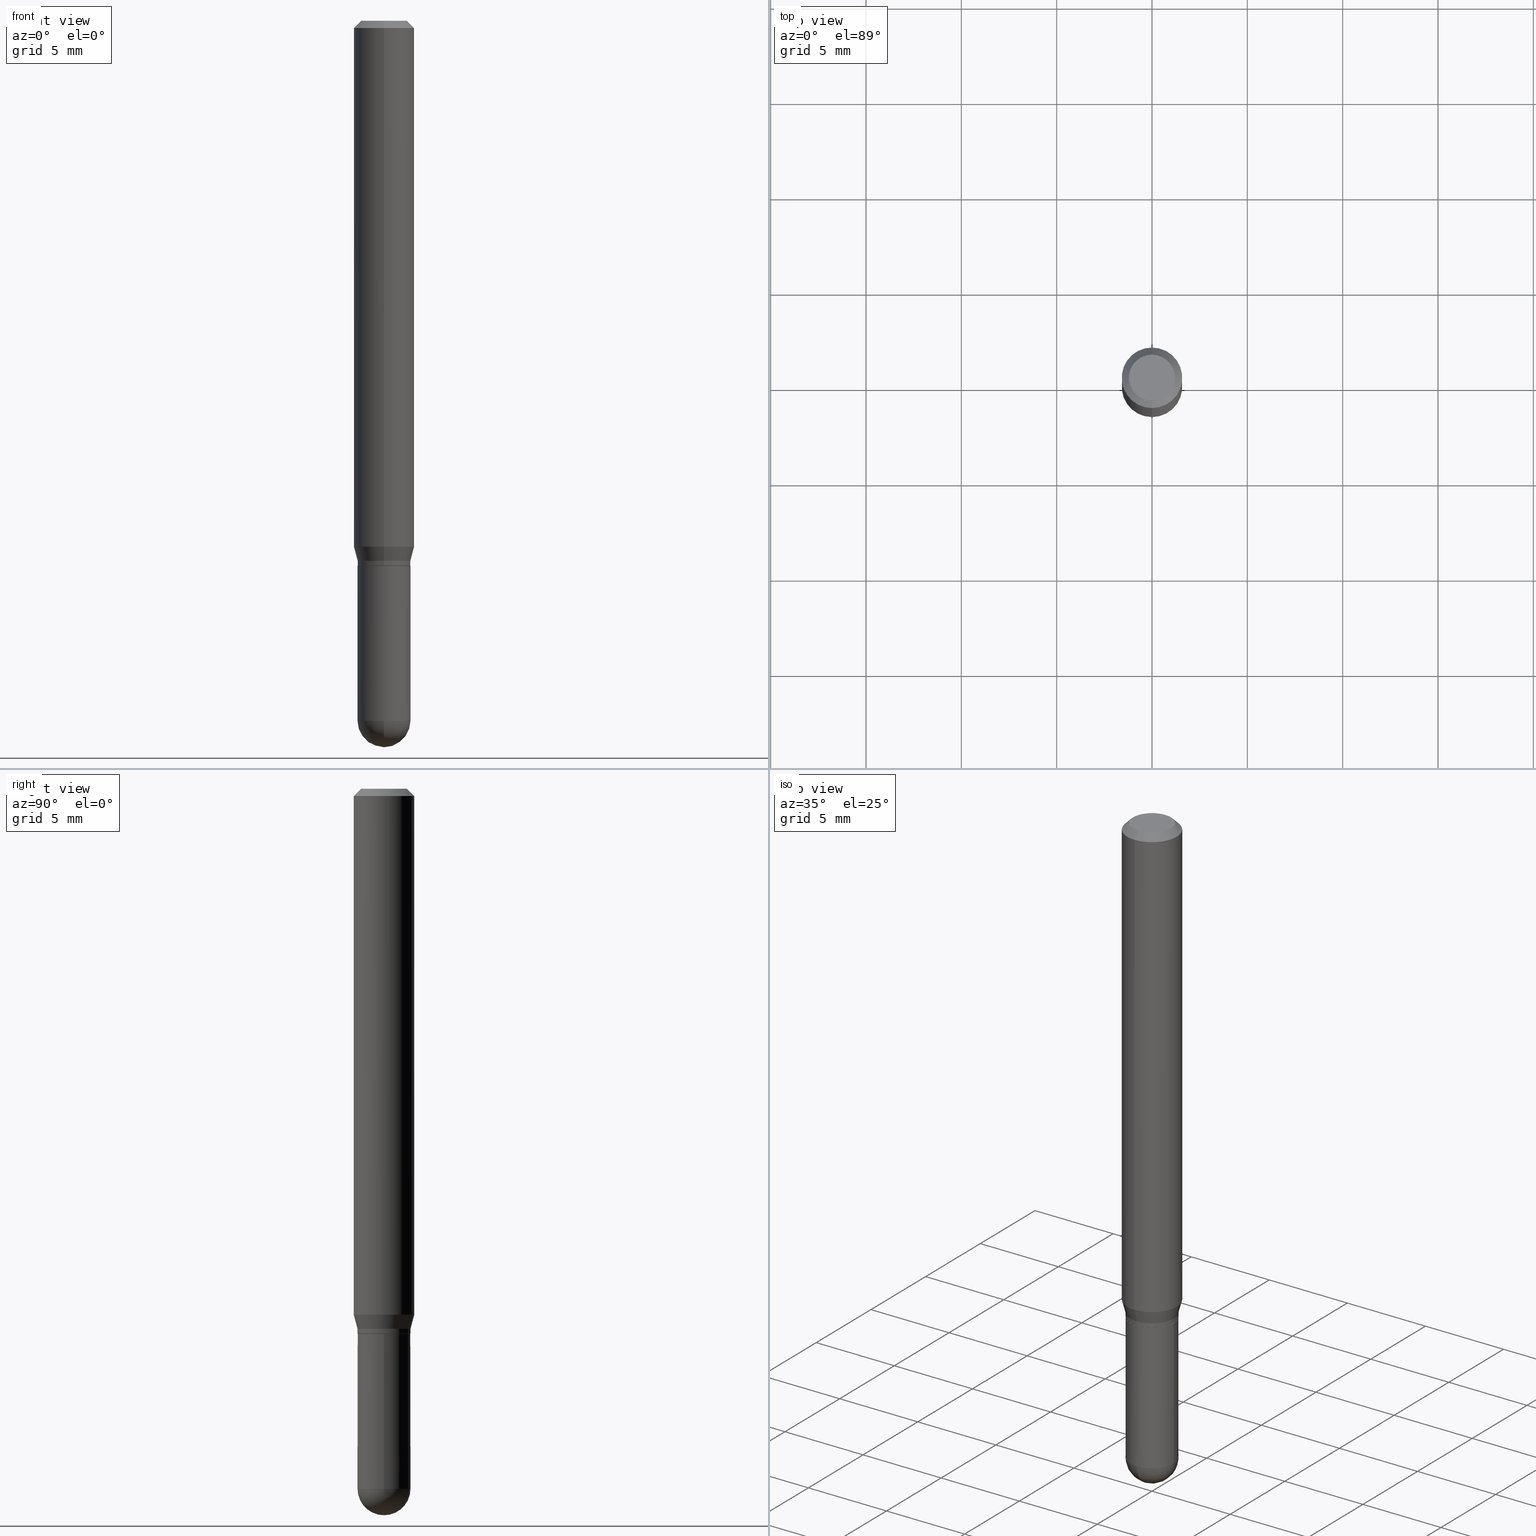
[diagram: canonical four-view strip — front | top / right | iso, engineering-drawing reading convention]
A machine part, canonical four-view strip (front | top / right | iso — engineering-drawing reading convention). The complete STEP part file that produces these views, byte-faithful:
ISO-10303-21;
HEADER;
FILE_DESCRIPTION (( 'STEP AP203' ),
    '1' );
FILE_NAME ('39114.STEP',
    '2024-03-08T12:44:53',
    ( '' ),
    ( '' ),
    'SwSTEP 2.0',
    'SolidWorks 2023',
    '' );
FILE_SCHEMA (( 'CONFIG_CONTROL_DESIGN' ));
ENDSEC;

DATA;
#1 = ORIENTED_EDGE ( 'NONE', *, *, #274, .F. ) ;
#2 = CARTESIAN_POINT ( 'NONE',  ( 0.000000000000000000, 0.000000000000000000, 0.000000000000000000 ) ) ;
#3 = EDGE_CURVE ( 'NONE', #215, #467, #497, .T. ) ;
#4 = PRODUCT_DEFINITION_SHAPE ( 'NONE', 'NONE',  #229 ) ;
#5 = CARTESIAN_POINT ( 'NONE',  ( 3.529758305977566399E-29, -5.052936797021334001E-15, -1.445300000000000029 ) ) ;
#6 = CLOSED_SHELL ( 'NONE', ( #174, #302, #383, #166, #213 ) ) ;
#7 = AXIS2_PLACEMENT_3D ( 'NONE', #219, #334, #107 ) ;
#8 = ORIENTED_EDGE ( 'NONE', *, *, #3, .F. ) ;
#9 = ADVANCED_FACE ( 'NONE', ( #231 ), #354, .T. ) ;
#10 = DIRECTION ( 'NONE',  ( -6.982962677686265922E-15, -1.000000000000000000, 4.994237648380719522E-15 ) ) ;
#11 = EDGE_LOOP ( 'NONE', ( #234, #183 ) ) ;
#12 = DIRECTION ( 'NONE',  ( 1.000000000000000000, -6.982962677686269866E-15, 0.000000000000000000 ) ) ;
#13 = CARTESIAN_POINT ( 'NONE',  ( 3.661186569874987869E-29, -5.247270235251722876E-15, -1.500000000000000222 ) ) ;
#14 = DIRECTION ( 'NONE',  ( -2.445474798914943281E-29, 3.491472756912977253E-15, 1.000000000000000000 ) ) ;
#15 = VECTOR ( 'NONE', #228, 39.37007874015748143 ) ;
#16 = VECTOR ( 'NONE', #410, 39.37007874015748143 ) ;
#17 = LINE ( 'NONE', #277, #15 ) ;
#18 = DIRECTION ( 'NONE',  ( -2.445474798914943281E-29, 3.491472756912977253E-15, 1.000000000000000000 ) ) ;
#19 = DATE_TIME_ROLE ( 'creation_date' ) ;
#20 = DIRECTION ( 'NONE',  ( -6.982962677686266711E-15, -1.000000000000000000, 2.520154975705040126E-15 ) ) ;
#21 = EDGE_CURVE ( 'NONE', #136, #77, #238, .T. ) ;
#22 = PERSON_AND_ORGANIZATION_ROLE ( 'design_supplier' ) ;
#23 = FACE_OUTER_BOUND ( 'NONE', #124, .T. ) ;
#24 = ORIENTED_EDGE ( 'NONE', *, *, #484, .T. ) ;
#25 = EDGE_LOOP ( 'NONE', ( #196, #313, #374, #425 ) ) ;
#26 = ADVANCED_FACE ( 'NONE', ( #32 ), #437, .T. ) ;
#27 = FACE_OUTER_BOUND ( 'NONE', #353, .T. ) ;
#28 = AXIS2_PLACEMENT_3D ( 'NONE', #311, #84, #432 ) ;
#29 = AXIS2_PLACEMENT_3D ( 'NONE', #210, #251, #327 ) ;
#30 = ORIENTED_EDGE ( 'NONE', *, *, #138, .T. ) ;
#31 = PERSON_AND_ORGANIZATION ( #474, #281 ) ;
#32 = FACE_OUTER_BOUND ( 'NONE', #211, .T. ) ;
#33 = ORIENTED_EDGE ( 'NONE', *, *, #128, .T. ) ;
#34 = DIRECTION ( 'NONE',  ( -6.982962677686265922E-15, -1.000000000000000000, 3.491472756912977647E-15 ) ) ;
#35 = ORIENTED_EDGE ( 'NONE', *, *, #148, .F. ) ;
#36 = FACE_OUTER_BOUND ( 'NONE', #25, .T. ) ;
#37 = EDGE_CURVE ( 'NONE', #421, #77, #186, .T. ) ;
#38 = AXIS2_PLACEMENT_3D ( 'NONE', #203, #43, #34 ) ;
#39 = DIRECTION ( 'NONE',  ( -6.982962677686265133E-15, -1.000000000000000000, 3.491472756912976858E-15 ) ) ;
#40 = SECURITY_CLASSIFICATION ( '', '', #315 ) ;
#41 = UNCERTAINTY_MEASURE_WITH_UNIT (LENGTH_MEASURE( 1.000000000000000082E-05 ), #405, 'distance_accuracy_value', 'NONE');
#42 = EDGE_CURVE ( 'NONE', #391, #53, #316, .T. ) ;
#43 = DIRECTION ( 'NONE',  ( -2.445474798914943281E-29, 3.491472756912977253E-15, 1.000000000000000000 ) ) ;
#44 = LINE ( 'NONE', #129, #342 ) ;
#45 = AXIS2_PLACEMENT_3D ( 'NONE', #286, #93, #257 ) ;
#46 = DIRECTION ( 'NONE',  ( 1.000000000000000000, -6.982962677686259611E-15, 0.000000000000000000 ) ) ;
#47 = DIRECTION ( 'NONE',  ( -6.982962677686266711E-15, -1.000000000000000000, 0.000000000000000000 ) ) ;
#48 = EDGE_CURVE ( 'NONE', #125, #465, #108, .T. ) ;
#49 = VECTOR ( 'NONE', #54, 39.37007874015748143 ) ;
#50 = CARTESIAN_POINT ( 'NONE',  ( 8.756930564183345789E-45, -1.250251464974845708E-30, -3.580871317123690674E-16 ) ) ;
#51 = ORIENTED_EDGE ( 'NONE', *, *, #193, .T. ) ;
#52 = CARTESIAN_POINT ( 'NONE',  ( -4.364351673553651440E-16, -0.06250000000000380251, -1.085890003700963558 ) ) ;
#53 = VERTEX_POINT ( 'NONE', #145 ) ;
#54 = DIRECTION ( 'NONE',  ( -4.851104656540959542E-15, -0.7071067811865493491, -0.7071067811865456854 ) ) ;
#55 = CARTESIAN_POINT ( 'NONE',  ( -0.05469999999999999862, 3.886668764607747919E-16, -2.690657494369433708E-30 ) ) ;
#56 = FACE_OUTER_BOUND ( 'NONE', #172, .T. ) ;
#57 = PERSON_AND_ORGANIZATION ( #474, #281 ) ;
#58 = AXIS2_PLACEMENT_3D ( 'NONE', #75, #164, #397 ) ;
#59 = AXIS2_PLACEMENT_3D ( 'NONE', #362, #296, #134 ) ;
#60 = DIRECTION ( 'NONE',  ( 6.982962677686265922E-15, 1.000000000000000000, -3.491472756912977253E-15 ) ) ;
#61 = ADVANCED_FACE ( 'NONE', ( #463 ), #115, .F. ) ;
#62 = ORIENTED_EDGE ( 'NONE', *, *, #3, .T. ) ;
#63 = APPROVAL_PERSON_ORGANIZATION ( #105, #441, #151 ) ;
#64 = CARTESIAN_POINT ( 'NONE',  ( 3.886668764608033881E-16, 0.05469999999999629325, -1.115000000000000213 ) ) ;
#65 = APPROVAL_ROLE ( '' ) ;
#66 = CARTESIAN_POINT ( 'NONE',  ( 3.886668764608023527E-16, 0.05469999999999607815, -1.124500000000000277 ) ) ;
#67 = ADVANCED_FACE ( 'NONE', ( #304 ), #297, .T. ) ;
#68 = EDGE_LOOP ( 'NONE', ( #30, #382, #121, #110 ) ) ;
#69 = EDGE_LOOP ( 'NONE', ( #113, #80, #310, #350 ) ) ;
#70 = DATE_TIME_ROLE ( 'classification_date' ) ;
#71 = DIRECTION ( 'NONE',  ( -2.445474798914943281E-29, 3.491472756912977253E-15, 1.000000000000000000 ) ) ;
#72 = CC_DESIGN_PERSON_AND_ORGANIZATION_ASSIGNMENT ( #348, #303, ( #229 ) ) ;
#73 = ORIENTED_EDGE ( 'NONE', *, *, #482, .F. ) ;
#74 = CALENDAR_DATE ( 2024, 8, 3 ) ;
#75 = CARTESIAN_POINT ( 'NONE',  ( 3.529758305977566399E-29, -5.052936797021334001E-15, -1.445300000000000029 ) ) ;
#76 = AXIS2_PLACEMENT_3D ( 'NONE', #399, #332, #10 ) ;
#77 = VERTEX_POINT ( 'NONE', #66 ) ;
#78 = VERTEX_POINT ( 'NONE', #119 ) ;
#79 = CALENDAR_DATE ( 2024, 8, 3 ) ;
#80 = ORIENTED_EDGE ( 'NONE', *, *, #247, .T. ) ;
#81 = FACE_OUTER_BOUND ( 'NONE', #507, .T. ) ;
#82 = PRODUCT ( '39114', '39114', '', ( #340 ) ) ;
#83 = ORIENTED_EDGE ( 'NONE', *, *, #388, .T. ) ;
#84 = DIRECTION ( 'NONE',  ( -2.445474798914943281E-29, 3.491472756912977253E-15, 1.000000000000000000 ) ) ;
#85 = AXIS2_PLACEMENT_3D ( 'NONE', #417, #188, #181 ) ;
#86 = VECTOR ( 'NONE', #217, 39.37007874015748143 ) ;
#87 = DIRECTION ( 'NONE',  ( -2.445474798914943281E-29, 3.491472756912977253E-15, 1.000000000000000000 ) ) ;
#88 = DIRECTION ( 'NONE',  ( -2.445468806185136877E-29, 3.491481338843145188E-15, 1.000000000000000000 ) ) ;
#89 = LOCAL_TIME ( 7, 44, 53.00000000000000000, #450 ) ;
#90 = CARTESIAN_POINT ( 'NONE',  ( -3.819680584694120632E-16, -0.05470000000000403706, -1.124500000000000055 ) ) ;
#91 = ORIENTED_EDGE ( 'NONE', *, *, #216, .T. ) ;
#92 = APPLICATION_CONTEXT ( 'configuration controlled 3d designs of mechanical parts and assemblies' ) ;
#93 = DIRECTION ( 'NONE',  ( -2.445468806185136597E-29, 3.491481338843145583E-15, 1.000000000000000000 ) ) ;
#94 = LENGTH_MEASURE_WITH_UNIT ( LENGTH_MEASURE( 0.02539999999999999897 ), #329 );
#95 = CC_DESIGN_PERSON_AND_ORGANIZATION_ASSIGNMENT ( #423, #191, ( #82 ) ) ;
#96 = AXIS2_PLACEMENT_3D ( 'NONE', #377, #339, #386 ) ;
#97 = AXIS2_PLACEMENT_3D ( 'NONE', #367, #439, #479 ) ;
#98 = CARTESIAN_POINT ( 'NONE',  ( 3.886668764608108330E-16, 0.05469999999999505119, -1.445300000000000251 ) ) ;
#99 = EDGE_CURVE ( 'NONE', #422, #465, #282, .T. ) ;
#100 = CYLINDRICAL_SURFACE ( 'NONE', #187, 0.06250000000000001388 ) ;
#101 = CARTESIAN_POINT ( 'NONE',  ( 0.05470000000000000556, -4.869045301083706902E-15, -1.445300000000000029 ) ) ;
#102 = ORIENTED_EDGE ( 'NONE', *, *, #148, .T. ) ;
#103 = ADVANCED_FACE ( 'NONE', ( #264 ), #131, .T. ) ;
#104 = LINE ( 'NONE', #409, #49 ) ;
#105 = PERSON_AND_ORGANIZATION ( #474, #281 ) ;
#106 = CARTESIAN_POINT ( 'NONE',  ( 0.05469999999999999862, -3.819680584694387859E-16, 2.667268696360376954E-30 ) ) ;
#107 = DIRECTION ( 'NONE',  ( 1.000000000000000000, -6.982962677686259611E-15, 0.000000000000000000 ) ) ;
#108 = CIRCLE ( 'NONE', #400, 0.06250000000000001388 ) ;
#109 = DIRECTION ( 'NONE',  ( -6.982962677686265133E-15, -1.000000000000000000, 2.497118824190365677E-15 ) ) ;
#110 = ORIENTED_EDGE ( 'NONE', *, *, #128, .F. ) ;
#111 = DIRECTION ( 'NONE',  ( -2.445474798914943281E-29, 3.491472756912977253E-15, 1.000000000000000000 ) ) ;
#112 = ORIENTED_EDGE ( 'NONE', *, *, #248, .F. ) ;
#113 = ORIENTED_EDGE ( 'NONE', *, *, #171, .T. ) ;
#114 = DIRECTION ( 'NONE',  ( 1.000000000000000000, 0.000000000000000000, 0.000000000000000000 ) ) ;
#115 = PLANE ( 'NONE',  #318 ) ;
#116 = APPLICATION_CONTEXT ( 'configuration controlled 3d designs of mechanical parts and assemblies' ) ;
#117 = DIRECTION ( 'NONE',  ( -2.445474798914943281E-29, 3.491472756912977253E-15, 1.000000000000000000 ) ) ;
#118 = DIRECTION ( 'NONE',  ( 0.000000000000000000, 0.000000000000000000, 1.000000000000000000 ) ) ;
#119 = CARTESIAN_POINT ( 'NONE',  ( 4.163780431554463635E-16, 0.05469999999999629325, -1.115000000000000213 ) ) ;
#120 = CIRCLE ( 'NONE', #359, 0.05470000000000018597 ) ;
#121 = ORIENTED_EDGE ( 'NONE', *, *, #37, .F. ) ;
#122 = EDGE_CURVE ( 'NONE', #77, #421, #265, .T. ) ;
#123 = DIRECTION ( 'NONE',  ( -2.445468806185136597E-29, 3.491481338843145583E-15, 1.000000000000000000 ) ) ;
#124 = EDGE_LOOP ( 'NONE', ( #500, #431, #387, #395 ) ) ;
#125 = VERTEX_POINT ( 'NONE', #177 ) ;
#126 = AXIS2_PLACEMENT_3D ( 'NONE', #466, #322, #202 ) ;
#127 = DIRECTION ( 'NONE',  ( 1.000000000000000000, -6.982962677686266711E-15, 4.876176775795935793E-29 ) ) ;
#128 = EDGE_CURVE ( 'NONE', #394, #421, #17, .T. ) ;
#129 = CARTESIAN_POINT ( 'NONE',  ( -3.819680584694395748E-16, -0.05470000000000011658, 1.909835598031402779E-16 ) ) ;
#130 = CARTESIAN_POINT ( 'NONE',  ( 3.668212198372502678E-31, -5.237209135369591431E-17, -0.01500000000000035853 ) ) ;
#131 = CONICAL_SURFACE ( 'NONE', #363, 0.05419999999999999818, 0.7853981633974739252 ) ;
#132 = CIRCLE ( 'NONE', #266, 0.05470000000000000556 ) ;
#133 = ADVANCED_FACE ( 'NONE', ( #23 ), #233, .T. ) ;
#134 = DIRECTION ( 'NONE',  ( -6.982962677686265922E-15, -1.000000000000000000, 4.370956789862821150E-15 ) ) ;
#135 = CC_DESIGN_SECURITY_CLASSIFICATION ( #40, ( #270 ) ) ;
#136 = VERTEX_POINT ( 'NONE', #269 ) ;
#137 = DIRECTION ( 'NONE',  ( 7.105427357601001070E-15, 1.000000000000000000, 0.000000000000000000 ) ) ;
#138 = EDGE_CURVE ( 'NONE', #394, #136, #254, .T. ) ;
#139 = CARTESIAN_POINT ( 'NONE',  ( 2.751152406958279232E-29, -3.927916506198539224E-15, -1.125000000000000222 ) ) ;
#140 = AXIS2_PLACEMENT_3D ( 'NONE', #385, #118, #114 ) ;
#141 = DIRECTION ( 'NONE',  ( -6.982962677686265133E-15, -1.000000000000000000, 3.491472756912976858E-15 ) ) ;
#142 = CC_DESIGN_DATE_AND_TIME_ASSIGNMENT ( #268, #70, ( #40 ) ) ;
#143 = DIRECTION ( 'NONE',  ( -6.982962677686266711E-15, -1.000000000000000000, 2.520154975705040126E-15 ) ) ;
#144 = ORIENTED_EDGE ( 'NONE', *, *, #122, .F. ) ;
#145 = CARTESIAN_POINT ( 'NONE',  ( 0.05469999999999999862, -4.309884564667978405E-15, -1.125000000000000222 ) ) ;
#146 = APPROVAL_DATE_TIME ( #236, #441 ) ;
#147 = AXIS2_PLACEMENT_3D ( 'NONE', #454, #413, #336 ) ;
#148 = EDGE_CURVE ( 'NONE', #317, #278, #372, .T. ) ;
#149 = DIRECTION ( 'NONE',  ( 2.445474798914943001E-29, -3.491472756912977253E-15, -1.000000000000000000 ) ) ;
#150 = CARTESIAN_POINT ( 'NONE',  ( 2.751159148779311401E-29, -3.927906851527099952E-15, -1.125000000000000222 ) ) ;
#151 = APPROVAL_ROLE ( '' ) ;
#152 = DIRECTION ( 'NONE',  ( -2.445474798914943281E-29, 3.491472756912977253E-15, 1.000000000000000000 ) ) ;
#153 = ORIENTED_EDGE ( 'NONE', *, *, #471, .T. ) ;
#154 = ORIENTED_EDGE ( 'NONE', *, *, #471, .F. ) ;
#155 = DATE_AND_TIME ( #74, #199 ) ;
#156 = CARTESIAN_POINT ( 'NONE',  ( 3.668212198372502678E-31, -5.237209135369591431E-17, -0.01500000000000035853 ) ) ;
#157 = ORIENTED_EDGE ( 'NONE', *, *, #48, .T. ) ;
#158 = CYLINDRICAL_SURFACE ( 'NONE', #396, 0.05469999999999999862 ) ;
#159 = CONICAL_SURFACE ( 'NONE', #319, 0.05470000000000018597, 0.2617993877991511287 ) ;
#160 = APPROVAL ( #453, 'UNSPECIFIED' ) ;
#161 = EDGE_LOOP ( 'NONE', ( #504, #102, #343, #427, #239 ) ) ;
#162 = ORIENTED_EDGE ( 'NONE', *, *, #171, .F. ) ;
#163 = EDGE_CURVE ( 'NONE', #77, #78, #496, .T. ) ;
#164 = DIRECTION ( 'NONE',  ( 1.000000000000000000, -6.982962677686265922E-15, 4.883557194083113462E-29 ) ) ;
#165 = DIRECTION ( 'NONE',  ( 1.000000000000000000, -6.982962677686269866E-15, 0.000000000000000000 ) ) ;
#166 = ADVANCED_FACE ( 'NONE', ( #27 ), #424, .T. ) ;
#167 = CONICAL_SURFACE ( 'NONE', #288, 0.05470000000000018597, 0.2617993877991511287 ) ;
#168 = DIRECTION ( 'NONE',  ( -6.982962677686265922E-15, -1.000000000000000000, 3.483106191921934765E-15 ) ) ;
#169 = CIRCLE ( 'NONE', #7, 0.05470000000000000556 ) ;
#170 = CARTESIAN_POINT ( 'NONE',  ( 3.534436065579377749E-29, -5.046237979029997798E-15, -1.445300000000000029 ) ) ;
#171 = EDGE_CURVE ( 'NONE', #422, #503, #434, .T. ) ;
#172 = EDGE_LOOP ( 'NONE', ( #1, #283, #357, #189 ) ) ;
#173 = DIRECTION ( 'NONE',  ( -1.000000000000000000, 6.982962677686265922E-15, -4.883557194083112340E-29 ) ) ;
#174 = ADVANCED_FACE ( 'NONE', ( #81 ), #355, .T. ) ;
#175 = ORIENTED_EDGE ( 'NONE', *, *, #360, .T. ) ;
#176 = FACE_OUTER_BOUND ( 'NONE', #69, .T. ) ;
#177 = CARTESIAN_POINT ( 'NONE',  ( 4.440892098500893388E-16, 0.06249999999999995837, -0.01500000000000057711 ) ) ;
#178 = MANIFOLD_SOLID_BREP ( 'Body-Move/Copy2[2]', #204 ) ;
#179 = LOCAL_TIME ( 7, 44, 53.00000000000000000, #380 ) ;
#180 = CARTESIAN_POINT ( 'NONE',  ( -3.819680584694040760E-16, -0.05470000000000515422, -1.445299999999999807 ) ) ;
#181 = DIRECTION ( 'NONE',  ( 6.982962677686265922E-15, 1.000000000000000000, -3.483106191921934765E-15 ) ) ;
#182 = CARTESIAN_POINT ( 'NONE',  ( 2.751159148779311401E-29, -3.927906851527099952E-15, -1.125000000000000222 ) ) ;
#183 = ORIENTED_EDGE ( 'NONE', *, *, #360, .F. ) ;
#184 = ORIENTED_EDGE ( 'NONE', *, *, #42, .F. ) ;
#185 = PRODUCT_RELATED_PRODUCT_CATEGORY ( 'detail', '', ( #82 ) ) ;
#186 = CIRCLE ( 'NONE', #486, 0.05470000000000006107 ) ;
#187 = AXIS2_PLACEMENT_3D ( 'NONE', #262, #411, #260 ) ;
#188 = DIRECTION ( 'NONE',  ( 2.445474798914943281E-29, -3.491472756912977253E-15, -1.000000000000000000 ) ) ;
#189 = ORIENTED_EDGE ( 'NONE', *, *, #494, .F. ) ;
#190 = ORIENTED_EDGE ( 'NONE', *, *, #274, .T. ) ;
#191 = PERSON_AND_ORGANIZATION_ROLE ( 'design_owner' ) ;
#192 = CARTESIAN_POINT ( 'NONE',  ( 3.668212198372502678E-31, -5.237209135369591431E-17, -0.01500000000000035853 ) ) ;
#193 = EDGE_CURVE ( 'NONE', #421, #384, #44, .T. ) ;
#194 = EDGE_LOOP ( 'NONE', ( #259, #62 ) ) ;
#195 = ADVANCED_FACE ( 'NONE', ( #36 ), #358, .T. ) ;
#196 = ORIENTED_EDGE ( 'NONE', *, *, #37, .T. ) ;
#197 = CARTESIAN_POINT ( 'NONE',  ( -3.773273898774342241E-16, -0.04750000000000004219, -1.922421757590025168E-16 ) ) ;
#198 = AXIS2_PLACEMENT_3D ( 'NONE', #461, #117, #39 ) ;
#199 = LOCAL_TIME ( 7, 44, 53.00000000000000000, #501 ) ;
#200 = EDGE_LOOP ( 'NONE', ( #314, #175, #33, #144 ) ) ;
#201 = ADVANCED_FACE ( 'NONE', ( #287 ), #511, .T. ) ;
#202 = DIRECTION ( 'NONE',  ( -6.982962677686265922E-15, -1.000000000000000000, 3.491472756912977253E-15 ) ) ;
#203 = CARTESIAN_POINT ( 'NONE',  ( 0.000000000000000000, 0.000000000000000000, 0.000000000000000000 ) ) ;
#204 = CLOSED_SHELL ( 'NONE', ( #195, #103, #67, #295, #291, #255, #133, #26, #61, #209, #9, #201 ) ) ;
#205 = AXIS2_PLACEMENT_3D ( 'NONE', #139, #444, #12 ) ;
#206 = DIMENSIONAL_EXPONENTS ( 1.000000000000000000, 0.000000000000000000, 0.000000000000000000, 0.000000000000000000, 0.000000000000000000, 0.000000000000000000, 0.000000000000000000 ) ;
#207 = EDGE_CURVE ( 'NONE', #346, #53, #212, .T. ) ;
#208 = CARTESIAN_POINT ( 'NONE',  ( -0.05469999999999999862, -4.098410366153493916E-15, -1.125000000000000222 ) ) ;
#209 = ADVANCED_FACE ( 'NONE', ( #242 ), #470, .F. ) ;
#210 = CARTESIAN_POINT ( 'NONE',  ( 2.726704400790161996E-29, -3.892992123957969757E-15, -1.115000000000000213 ) ) ;
#211 = EDGE_LOOP ( 'NONE', ( #244, #330, #153, #157 ) ) ;
#212 = CIRCLE ( 'NONE', #498, 0.05469999999999999862 ) ;
#213 = ADVANCED_FACE ( 'NONE', ( #468 ), #158, .T. ) ;
#214 = DIRECTION ( 'NONE',  ( -6.982962677686266711E-15, -1.000000000000000000, 2.520154975705040126E-15 ) ) ;
#215 = VERTEX_POINT ( 'NONE', #197 ) ;
#216 = EDGE_CURVE ( 'NONE', #391, #337, #328, .T. ) ;
#217 = DIRECTION ( 'NONE',  ( 4.937700262164543309E-15, 0.7071067811865444641, -0.7071067811865505703 ) ) ;
#218 = EDGE_LOOP ( 'NONE', ( #24, #190, #162, #276 ) ) ;
#219 = CARTESIAN_POINT ( 'NONE',  ( 3.534436065579377749E-29, -5.046237979029997798E-15, -1.445300000000000029 ) ) ;
#220 = CARTESIAN_POINT ( 'NONE',  ( 2.726704400790161996E-29, -3.892992123957969757E-15, -1.115000000000000213 ) ) ;
#221 = CARTESIAN_POINT ( 'NONE',  ( 2.749936411379854043E-29, -3.926161115148643166E-15, -1.124500000000000055 ) ) ;
#222 = AXIS2_PLACEMENT_3D ( 'NONE', #490, #381, #143 ) ;
#223 = LINE ( 'NONE', #491, #406 ) ;
#224 = APPROVAL_DATE_TIME ( #492, #289 ) ;
#225 = DIRECTION ( 'NONE',  ( -6.982962677686266711E-15, -1.000000000000000000, 2.520154975705040126E-15 ) ) ;
#226 = ORIENTED_EDGE ( 'NONE', *, *, #388, .F. ) ;
#227 = FACE_OUTER_BOUND ( 'NONE', #218, .T. ) ;
#228 = DIRECTION ( 'NONE',  ( -4.937700262164674260E-15, -0.7071067811865632269, 0.7071067811865319186 ) ) ;
#229 = PRODUCT_DEFINITION ( 'UNKNOWN', '', #270, #433 ) ;
#230 = ORIENTED_EDGE ( 'NONE', *, *, #345, .F. ) ;
#231 = FACE_OUTER_BOUND ( 'NONE', #200, .T. ) ;
#232 = DATE_AND_TIME ( #79, #89 ) ;
#233 = CYLINDRICAL_SURFACE ( 'NONE', #147, 0.06250000000000001388 ) ;
#234 = ORIENTED_EDGE ( 'NONE', *, *, #138, .F. ) ;
#235 = VECTOR ( 'NONE', #420, 39.37007874015748143 ) ;
#236 = DATE_AND_TIME ( #272, #179 ) ;
#237 =( GEOMETRIC_REPRESENTATION_CONTEXT ( 3 ) GLOBAL_UNCERTAINTY_ASSIGNED_CONTEXT ( ( #41 ) ) GLOBAL_UNIT_ASSIGNED_CONTEXT ( ( #405, #489, #459 ) ) REPRESENTATION_CONTEXT ( 'NONE', 'WORKASPACE' ) );
#238 = LINE ( 'NONE', #390, #305 ) ;
#239 = ORIENTED_EDGE ( 'NONE', *, *, #207, .F. ) ;
#240 = PERSON_AND_ORGANIZATION_ROLE ( 'classification_officer' ) ;
#241 = CC_DESIGN_PERSON_AND_ORGANIZATION_ASSIGNMENT ( #338, #22, ( #270 ) ) ;
#242 = FACE_OUTER_BOUND ( 'NONE', #11, .T. ) ;
#243 = EDGE_LOOP ( 'NONE', ( #271, #309 ) ) ;
#244 = ORIENTED_EDGE ( 'NONE', *, *, #298, .F. ) ;
#245 = DIRECTION ( 'NONE',  ( -6.982962677686265922E-15, -1.000000000000000000, 3.491472756912977647E-15 ) ) ;
#246 = CIRCLE ( 'NONE', #306, 0.06250000000000001388 ) ;
#247 = EDGE_CURVE ( 'NONE', #503, #125, #223, .T. ) ;
#248 = EDGE_CURVE ( 'NONE', #278, #391, #169, .T. ) ;
#249 = VECTOR ( 'NONE', #429, 39.37007874015748143 ) ;
#250 = AXIS2_PLACEMENT_3D ( 'NONE', #50, #300, #141 ) ;
#251 = DIRECTION ( 'NONE',  ( -2.445474798914943281E-29, 3.491472756912977253E-15, 1.000000000000000000 ) ) ;
#252 = LINE ( 'NONE', #55, #464 ) ;
#253 = CARTESIAN_POINT ( 'NONE',  ( 3.840629472727450339E-16, 0.04750000000000004219, -5.239320876657356674E-16 ) ) ;
#254 = CIRCLE ( 'NONE', #222, 0.05419999999999999818 ) ;
#255 = ADVANCED_FACE ( 'NONE', ( #56 ), #159, .T. ) ;
#256 = AXIS2_PLACEMENT_3D ( 'NONE', #258, #326, #214 ) ;
#257 = DIRECTION ( 'NONE',  ( 1.000000000000000000, -6.982962677686259611E-15, 0.000000000000000000 ) ) ;
#258 = CARTESIAN_POINT ( 'NONE',  ( 2.751159148779311401E-29, -3.927906851527099952E-15, -1.125000000000000222 ) ) ;
#259 = ORIENTED_EDGE ( 'NONE', *, *, #352, .T. ) ;
#260 = DIRECTION ( 'NONE',  ( -6.982962677686265133E-15, -1.000000000000000000, 3.491472756912976858E-15 ) ) ;
#261 = LINE ( 'NONE', #361, #86 ) ;
#262 = CARTESIAN_POINT ( 'NONE',  ( 0.000000000000000000, 0.000000000000000000, 0.000000000000000000 ) ) ;
#263 = APPROVAL_STATUS ( 'not_yet_approved' ) ;
#264 = FACE_OUTER_BOUND ( 'NONE', #68, .T. ) ;
#265 = CIRCLE ( 'NONE', #279, 0.05470000000000006107 ) ;
#266 = AXIS2_PLACEMENT_3D ( 'NONE', #170, #403, #46 ) ;
#267 = DIRECTION ( 'NONE',  ( -2.445474798914943281E-29, 3.491472756912977253E-15, 1.000000000000000000 ) ) ;
#268 = DATE_AND_TIME ( #416, #512 ) ;
#269 = CARTESIAN_POINT ( 'NONE',  ( 3.868905196214021993E-16, 0.05419999999999607077, -1.125000000000000222 ) ) ;
#270 = PRODUCT_DEFINITION_FORMATION_WITH_SPECIFIED_SOURCE ( 'ANY', '', #82, .NOT_KNOWN. ) ;
#271 = ORIENTED_EDGE ( 'NONE', *, *, #366, .T. ) ;
#272 = CALENDAR_DATE ( 2024, 8, 3 ) ;
#273 = DIRECTION ( 'NONE',  ( -2.445474798914943281E-29, 3.491472756912977253E-15, 1.000000000000000000 ) ) ;
#274 = EDGE_CURVE ( 'NONE', #78, #503, #375, .T. ) ;
#275 = EDGE_LOOP ( 'NONE', ( #368, #499, #469, #112 ) ) ;
#276 = ORIENTED_EDGE ( 'NONE', *, *, #393, .F. ) ;
#277 = CARTESIAN_POINT ( 'NONE',  ( -3.784765771305680700E-16, -0.05420000000000392559, -1.125000000000000000 ) ) ;
#278 = VERTEX_POINT ( 'NONE', #180 ) ;
#279 = AXIS2_PLACEMENT_3D ( 'NONE', #221, #71, #371 ) ;
#280 = PERSON_AND_ORGANIZATION ( #474, #281 ) ;
#281 = ORGANIZATION ( 'UNSPECIFIED', 'UNSPECIFIED', '' ) ;
#282 = LINE ( 'NONE', #301, #249 ) ;
#283 = ORIENTED_EDGE ( 'NONE', *, *, #482, .T. ) ;
#284 = DIRECTION ( 'NONE',  ( 1.000000000000000000, -6.982962677686266711E-15, 4.876176775795935793E-29 ) ) ;
#285 = VERTEX_POINT ( 'NONE', #13 ) ;
#286 = CARTESIAN_POINT ( 'NONE',  ( 3.534436065579377749E-29, -5.046237979029997798E-15, -1.445300000000000029 ) ) ;
#287 = FACE_OUTER_BOUND ( 'NONE', #458, .T. ) ;
#288 = AXIS2_PLACEMENT_3D ( 'NONE', #379, #299, #446 ) ;
#289 = APPROVAL ( #307, 'UNSPECIFIED' ) ;
#290 = DIRECTION ( 'NONE',  ( -2.445468806185136597E-29, 3.491481338843145583E-15, 1.000000000000000000 ) ) ;
#291 = ADVANCED_FACE ( 'NONE', ( #227 ), #167, .T. ) ;
#292 = CARTESIAN_POINT ( 'NONE',  ( -0.05470000000000000556, -4.098410366153493916E-15, -1.445300000000000029 ) ) ;
#293 = AXIS2_PLACEMENT_3D ( 'NONE', #5, #173, #47 ) ;
#294 = FACE_OUTER_BOUND ( 'NONE', #243, .T. ) ;
#295 = ADVANCED_FACE ( 'NONE', ( #176 ), #100, .T. ) ;
#296 = DIRECTION ( 'NONE',  ( -2.445474798914943281E-29, 3.491472756912977253E-15, 1.000000000000000000 ) ) ;
#297 = CONICAL_SURFACE ( 'NONE', #85, 0.06250000000000001388, 0.7853981633974473908 ) ;
#298 = EDGE_CURVE ( 'NONE', #215, #465, #104, .T. ) ;
#299 = DIRECTION ( 'NONE',  ( -2.445474798914943281E-29, 3.491472756912977253E-15, 1.000000000000000000 ) ) ;
#300 = DIRECTION ( 'NONE',  ( -2.445474798914943281E-29, 3.491472756912977253E-15, 1.000000000000000000 ) ) ;
#301 = CARTESIAN_POINT ( 'NONE',  ( -4.364351673553916694E-16, -0.06250000000000001388, 2.182170473070611030E-16 ) ) ;
#302 = ADVANCED_FACE ( 'NONE', ( #449 ), #481, .T. ) ;
#303 = PERSON_AND_ORGANIZATION_ROLE ( 'creator' ) ;
#304 = FACE_OUTER_BOUND ( 'NONE', #323, .T. ) ;
#305 = VECTOR ( 'NONE', #493, 39.37007874015748143 ) ;
#306 = AXIS2_PLACEMENT_3D ( 'NONE', #130, #483, #168 ) ;
#307 = APPROVAL_STATUS ( 'not_yet_approved' ) ;
#308 = CARTESIAN_POINT ( 'NONE',  ( 2.749936411379854043E-29, -3.926161115148643166E-15, -1.124500000000000055 ) ) ;
#309 = ORIENTED_EDGE ( 'NONE', *, *, #207, .T. ) ;
#310 = ORIENTED_EDGE ( 'NONE', *, *, #408, .F. ) ;
#311 = CARTESIAN_POINT ( 'NONE',  ( 2.655516638444361478E-29, -3.791355364926047630E-15, -1.085890003700963780 ) ) ;
#312 = CC_DESIGN_PERSON_AND_ORGANIZATION_ASSIGNMENT ( #31, #505, ( #270 ) ) ;
#313 = ORIENTED_EDGE ( 'NONE', *, *, #163, .T. ) ;
#314 = ORIENTED_EDGE ( 'NONE', *, *, #21, .F. ) ;
#315 = SECURITY_CLASSIFICATION_LEVEL ( 'unclassified' ) ;
#316 = LINE ( 'NONE', #106, #235 ) ;
#317 = VERTEX_POINT ( 'NONE', #292 ) ;
#318 = AXIS2_PLACEMENT_3D ( 'NONE', #451, #149, #60 ) ;
#319 = AXIS2_PLACEMENT_3D ( 'NONE', #452, #267, #415 ) ;
#320 = CARTESIAN_POINT ( 'NONE',  ( 0.000000000000000000, 0.000000000000000000, 0.000000000000000000 ) ) ;
#321 = ORIENTED_EDGE ( 'NONE', *, *, #298, .T. ) ;
#322 = DIRECTION ( 'NONE',  ( -2.445474798914943001E-29, 3.491472756912977253E-15, 1.000000000000000000 ) ) ;
#323 = EDGE_LOOP ( 'NONE', ( #8, #321, #347, #154 ) ) ;
#324 = CARTESIAN_POINT ( 'NONE',  ( 2.751152406958279232E-29, -3.927916506198539224E-15, -1.125000000000000222 ) ) ;
#325 = DIRECTION ( 'NONE',  ( -2.445468806185136597E-29, 3.491481338843145583E-15, 1.000000000000000000 ) ) ;
#326 = DIRECTION ( 'NONE',  ( -2.445474798914943281E-29, 3.491472756912977253E-15, 1.000000000000000000 ) ) ;
#327 = DIRECTION ( 'NONE',  ( -6.982962677686266711E-15, -1.000000000000000000, 2.497118824190360155E-15 ) ) ;
#328 = CIRCLE ( 'NONE', #45, 0.05470000000000000556 ) ;
#329 =( LENGTH_UNIT ( ) NAMED_UNIT ( * ) SI_UNIT ( $, .METRE. ) );
#330 = ORIENTED_EDGE ( 'NONE', *, *, #352, .F. ) ;
#331 = CARTESIAN_POINT ( 'NONE',  ( -3.819680584694127535E-16, -0.05470000000000407869, -1.114999999999999991 ) ) ;
#332 = DIRECTION ( 'NONE',  ( 1.000000000000000000, -6.982962677686265922E-15, 4.883557194083113462E-29 ) ) ;
#333 = AXIS2_PLACEMENT_3D ( 'NONE', #192, #349, #506 ) ;
#334 = DIRECTION ( 'NONE',  ( -2.445468806185136597E-29, 3.491481338843145583E-15, 1.000000000000000000 ) ) ;
#335 = APPROVAL_DATE_TIME ( #155, #160 ) ;
#336 = DIRECTION ( 'NONE',  ( -6.982962677686265133E-15, -1.000000000000000000, 3.491472756912976858E-15 ) ) ;
#337 = VERTEX_POINT ( 'NONE', #98 ) ;
#338 = PERSON_AND_ORGANIZATION ( #474, #281 ) ;
#339 = DIRECTION ( 'NONE',  ( -2.445468806185136597E-29, 3.491481338843145583E-15, 1.000000000000000000 ) ) ;
#340 = MECHANICAL_CONTEXT ( 'NONE', #116, 'mechanical' ) ;
#341 = DIRECTION ( 'NONE',  ( -2.445474798914943281E-29, 3.491472756912977253E-15, 1.000000000000000000 ) ) ;
#342 = VECTOR ( 'NONE', #473, 39.37007874015748143 ) ;
#343 = ORIENTED_EDGE ( 'NONE', *, *, #248, .T. ) ;
#344 = APPLICATION_PROTOCOL_DEFINITION ( 'international standard', 'config_control_design', 1994, #116 ) ;
#345 = EDGE_CURVE ( 'NONE', #285, #337, #472, .T. ) ;
#346 = VERTEX_POINT ( 'NONE', #208 ) ;
#347 = ORIENTED_EDGE ( 'NONE', *, *, #408, .T. ) ;
#348 = PERSON_AND_ORGANIZATION ( #474, #281 ) ;
#349 = DIRECTION ( 'NONE',  ( 2.445474798914943281E-29, -3.491472756912977253E-15, -1.000000000000000000 ) ) ;
#350 = ORIENTED_EDGE ( 'NONE', *, *, #99, .F. ) ;
#351 = MANIFOLD_SOLID_BREP ( 'Body-Move/Copy2[1]', #6 ) ;
#352 = EDGE_CURVE ( 'NONE', #467, #215, #401, .T. ) ;
#353 = EDGE_LOOP ( 'NONE', ( #230, #510, #35, #226 ) ) ;
#354 = CONICAL_SURFACE ( 'NONE', #477, 0.05419999999999999818, 0.7853981633974739252 ) ;
#355 = CYLINDRICAL_SURFACE ( 'NONE', #435, 0.05469999999999999862 ) ;
#356 = LOCAL_TIME ( 7, 44, 53.00000000000000000, #462 ) ;
#357 = ORIENTED_EDGE ( 'NONE', *, *, #393, .T. ) ;
#358 = CYLINDRICAL_SURFACE ( 'NONE', #509, 0.05470000000000011658 ) ;
#359 = AXIS2_PLACEMENT_3D ( 'NONE', #220, #14, #476 ) ;
#360 = EDGE_CURVE ( 'NONE', #136, #394, #455, .T. ) ;
#361 = CARTESIAN_POINT ( 'NONE',  ( 4.364351673553921131E-16, 0.06249999999999996531, -0.01500000000000057711 ) ) ;
#362 = CARTESIAN_POINT ( 'NONE',  ( 2.655516638444361478E-29, -3.791355364926047630E-15, -1.085890003700963780 ) ) ;
#363 = AXIS2_PLACEMENT_3D ( 'NONE', #182, #273, #225 ) ;
#364 = CIRCLE ( 'NONE', #59, 0.06250000000000000000 ) ;
#365 = ORIENTED_EDGE ( 'NONE', *, *, #366, .F. ) ;
#366 = EDGE_CURVE ( 'NONE', #53, #346, #438, .T. ) ;
#367 = CARTESIAN_POINT ( 'NONE',  ( 3.819680584694662481E-16, 0.05469999999999607121, -1.125000000000000222 ) ) ;
#368 = ORIENTED_EDGE ( 'NONE', *, *, #475, .F. ) ;
#369 = DIRECTION ( 'NONE',  ( 1.000000000000000000, -7.105427357601001070E-15, 4.926315508542082329E-29 ) ) ;
#370 = CARTESIAN_POINT ( 'NONE',  ( -3.784765771305680700E-16, -0.05420000000000392559, -1.125000000000000000 ) ) ;
#371 = DIRECTION ( 'NONE',  ( -6.982962677686265133E-15, -1.000000000000000000, 2.497118824190365677E-15 ) ) ;
#372 = CIRCLE ( 'NONE', #96, 0.05470000000000000556 ) ;
#373 = VECTOR ( 'NONE', #488, 39.37007874015748143 ) ;
#374 = ORIENTED_EDGE ( 'NONE', *, *, #484, .F. ) ;
#375 = LINE ( 'NONE', #64, #373 ) ;
#376 = SHAPE_DEFINITION_REPRESENTATION ( #4, #448 ) ;
#377 = CARTESIAN_POINT ( 'NONE',  ( 3.534436065579377749E-29, -5.046237979029997798E-15, -1.445300000000000029 ) ) ;
#378 = CC_DESIGN_APPROVAL ( #441, ( #270 ) ) ;
#379 = CARTESIAN_POINT ( 'NONE',  ( 2.726704400790161996E-29, -3.892992123957969757E-15, -1.115000000000000213 ) ) ;
#380 = COORDINATED_UNIVERSAL_TIME_OFFSET ( 5, 0, .BEHIND. ) ;
#381 = DIRECTION ( 'NONE',  ( -2.445474798914943281E-29, 3.491472756912977253E-15, 1.000000000000000000 ) ) ;
#382 = ORIENTED_EDGE ( 'NONE', *, *, #21, .T. ) ;
#383 = ADVANCED_FACE ( 'NONE', ( #294 ), #443, .F. ) ;
#384 = VERTEX_POINT ( 'NONE', #407 ) ;
#385 = CARTESIAN_POINT ( 'NONE',  ( 0.000000000000000000, 0.000000000000000000, 0.000000000000000000 ) ) ;
#386 = DIRECTION ( 'NONE',  ( 1.000000000000000000, -6.982962677686259611E-15, 0.000000000000000000 ) ) ;
#387 = ORIENTED_EDGE ( 'NONE', *, *, #99, .T. ) ;
#388 = EDGE_CURVE ( 'NONE', #337, #317, #132, .T. ) ;
#389 = APPROVAL_ROLE ( '' ) ;
#390 = CARTESIAN_POINT ( 'NONE',  ( 3.851141627820017500E-16, 0.05419999999999607077, -1.125000000000000222 ) ) ;
#391 = VERTEX_POINT ( 'NONE', #101 ) ;
#392 = CALENDAR_DATE ( 2024, 8, 3 ) ;
#393 = EDGE_CURVE ( 'NONE', #384, #422, #485, .T. ) ;
#394 = VERTEX_POINT ( 'NONE', #370 ) ;
#395 = ORIENTED_EDGE ( 'NONE', *, *, #48, .F. ) ;
#396 = AXIS2_PLACEMENT_3D ( 'NONE', #320, #123, #284 ) ;
#397 = DIRECTION ( 'NONE',  ( -6.982962677686265922E-15, -1.000000000000000000, 4.994237648380719522E-15 ) ) ;
#398 = CC_DESIGN_DATE_AND_TIME_ASSIGNMENT ( #232, #19, ( #229 ) ) ;
#399 = CARTESIAN_POINT ( 'NONE',  ( 3.529758305977566399E-29, -5.052936797021334001E-15, -1.445300000000000029 ) ) ;
#400 = AXIS2_PLACEMENT_3D ( 'NONE', #156, #152, #460 ) ;
#401 = CIRCLE ( 'NONE', #250, 0.04750000000000004219 ) ;
#402 = CARTESIAN_POINT ( 'NONE',  ( -4.364351673553913736E-16, -0.06250000000000006939, -0.01500000000000014169 ) ) ;
#403 = DIRECTION ( 'NONE',  ( -2.445468806185136597E-29, 3.491481338843145583E-15, 1.000000000000000000 ) ) ;
#404 = CC_DESIGN_PERSON_AND_ORGANIZATION_ASSIGNMENT ( #495, #240, ( #40 ) ) ;
#405 =( CONVERSION_BASED_UNIT ( 'INCH', #94 ) LENGTH_UNIT ( ) NAMED_UNIT ( #206 ) );
#406 = VECTOR ( 'NONE', #18, 39.37007874015748143 ) ;
#407 = CARTESIAN_POINT ( 'NONE',  ( -3.819680584694127535E-16, -0.05470000000000407869, -1.114999999999999991 ) ) ;
#408 = EDGE_CURVE ( 'NONE', #465, #125, #246, .T. ) ;
#409 = CARTESIAN_POINT ( 'NONE',  ( -4.287811248607204268E-16, -0.06250000000000006939, -0.01500000000000014169 ) ) ;
#410 = DIRECTION ( 'NONE',  ( -1.807323732225336056E-15, -0.2588190451025190186, 0.9659258262890687563 ) ) ;
#411 = DIRECTION ( 'NONE',  ( -2.445474798914943281E-29, 3.491472756912977253E-15, 1.000000000000000000 ) ) ;
#412 = COORDINATED_UNIVERSAL_TIME_OFFSET ( 5, 0, .BEHIND. ) ;
#413 = DIRECTION ( 'NONE',  ( -2.445474798914943281E-29, 3.491472756912977253E-15, 1.000000000000000000 ) ) ;
#414 = APPROVAL_PERSON_ORGANIZATION ( #280, #160, #389 ) ;
#415 = DIRECTION ( 'NONE',  ( -6.982962677686266711E-15, -1.000000000000000000, 2.497118824190360155E-15 ) ) ;
#416 = CALENDAR_DATE ( 2024, 8, 3 ) ;
#417 = CARTESIAN_POINT ( 'NONE',  ( 3.668212198372502678E-31, -5.237209135369591431E-17, -0.01500000000000035853 ) ) ;
#418 = APPROVAL_PERSON_ORGANIZATION ( #57, #289, #65 ) ;
#419 = ORIENTED_EDGE ( 'NONE', *, *, #122, .T. ) ;
#420 = DIRECTION ( 'NONE',  ( -2.445468806185136877E-29, 3.491481338843145188E-15, 1.000000000000000000 ) ) ;
#421 = VERTEX_POINT ( 'NONE', #90 ) ;
#422 = VERTEX_POINT ( 'NONE', #52 ) ;
#423 = PERSON_AND_ORGANIZATION ( #474, #281 ) ;
#424 = SPHERICAL_SURFACE ( 'NONE', #58, 0.05470000000000019291 ) ;
#425 = ORIENTED_EDGE ( 'NONE', *, *, #193, .F. ) ;
#426 = AXIS2_PLACEMENT_3D ( 'NONE', #447, #369, #137 ) ;
#427 = ORIENTED_EDGE ( 'NONE', *, *, #42, .T. ) ;
#428 = APPLICATION_PROTOCOL_DEFINITION ( 'international standard', 'config_control_design', 1994, #92 ) ;
#429 = DIRECTION ( 'NONE',  ( -2.445474798914943281E-29, 3.491472756912977253E-15, 1.000000000000000000 ) ) ;
#430 = ORIENTED_EDGE ( 'NONE', *, *, #163, .F. ) ;
#431 = ORIENTED_EDGE ( 'NONE', *, *, #494, .T. ) ;
#432 = DIRECTION ( 'NONE',  ( -6.982962677686265922E-15, -1.000000000000000000, 4.370956789862821150E-15 ) ) ;
#433 = DESIGN_CONTEXT ( 'detailed design', #92, 'design' ) ;
#434 = CIRCLE ( 'NONE', #28, 0.06250000000000000000 ) ;
#435 = AXIS2_PLACEMENT_3D ( 'NONE', #436, #325, #127 ) ;
#436 = CARTESIAN_POINT ( 'NONE',  ( 0.000000000000000000, 0.000000000000000000, 0.000000000000000000 ) ) ;
#437 = CONICAL_SURFACE ( 'NONE', #333, 0.06250000000000001388, 0.7853981633974473908 ) ;
#438 = CIRCLE ( 'NONE', #205, 0.05469999999999999862 ) ;
#439 = DIRECTION ( 'NONE',  ( 2.438088387897960049E-29, -3.491481338843145188E-15, -1.000000000000000000 ) ) ;
#440 = CARTESIAN_POINT ( 'NONE',  ( 4.440892098500890430E-16, 0.06249999999999619055, -1.085890003700964002 ) ) ;
#441 = APPROVAL ( #263, 'UNSPECIFIED' ) ;
#442 = ORIENTED_EDGE ( 'NONE', *, *, #457, .T. ) ;
#443 = PLANE ( 'NONE',  #97 ) ;
#444 = DIRECTION ( 'NONE',  ( -2.445468806185136597E-29, 3.491481338843145583E-15, 1.000000000000000000 ) ) ;
#445 = CIRCLE ( 'NONE', #293, 0.05470000000000019291 ) ;
#446 = DIRECTION ( 'NONE',  ( -6.982962677686266711E-15, -1.000000000000000000, 2.497118824190360155E-15 ) ) ;
#447 = CARTESIAN_POINT ( 'NONE',  ( 3.529758305977566399E-29, -5.052936797021334001E-15, -1.445300000000000029 ) ) ;
#448 = ADVANCED_BREP_SHAPE_REPRESENTATION ( '39114', ( #351, #178, #140 ), #237 ) ;
#449 = FACE_OUTER_BOUND ( 'NONE', #275, .T. ) ;
#450 = COORDINATED_UNIVERSAL_TIME_OFFSET ( 5, 0, .BEHIND. ) ;
#451 = CARTESIAN_POINT ( 'NONE',  ( 3.316907271900979054E-16, 0.04750000000000004219, -3.448885218095511090E-16 ) ) ;
#452 = CARTESIAN_POINT ( 'NONE',  ( 2.726704400790161996E-29, -3.892992123957969757E-15, -1.115000000000000213 ) ) ;
#453 = APPROVAL_STATUS ( 'not_yet_approved' ) ;
#454 = CARTESIAN_POINT ( 'NONE',  ( 0.000000000000000000, 0.000000000000000000, 0.000000000000000000 ) ) ;
#455 = CIRCLE ( 'NONE', #256, 0.05419999999999999818 ) ;
#456 = CARTESIAN_POINT ( 'NONE',  ( 3.886668764607755808E-16, 0.05470000000000011658, -1.909835598031402779E-16 ) ) ;
#457 = EDGE_CURVE ( 'NONE', #317, #346, #252, .T. ) ;
#458 = EDGE_LOOP ( 'NONE', ( #430, #419, #51, #73 ) ) ;
#459 =( NAMED_UNIT ( * ) SI_UNIT ( $, .STERADIAN. ) SOLID_ANGLE_UNIT ( ) );
#460 = DIRECTION ( 'NONE',  ( -6.982962677686265922E-15, -1.000000000000000000, 3.483106191921934765E-15 ) ) ;
#461 = CARTESIAN_POINT ( 'NONE',  ( 8.756930564183345789E-45, -1.250251464974845708E-30, -3.580871317123690674E-16 ) ) ;
#462 = COORDINATED_UNIVERSAL_TIME_OFFSET ( 5, 0, .BEHIND. ) ;
#463 = FACE_OUTER_BOUND ( 'NONE', #194, .T. ) ;
#464 = VECTOR ( 'NONE', #88, 39.37007874015748143 ) ;
#465 = VERTEX_POINT ( 'NONE', #402 ) ;
#466 = CARTESIAN_POINT ( 'NONE',  ( 2.751159148779311401E-29, -3.927906851527099952E-15, -1.125000000000000222 ) ) ;
#467 = VERTEX_POINT ( 'NONE', #253 ) ;
#468 = FACE_OUTER_BOUND ( 'NONE', #161, .T. ) ;
#469 = ORIENTED_EDGE ( 'NONE', *, *, #216, .F. ) ;
#470 = PLANE ( 'NONE',  #126 ) ;
#471 = EDGE_CURVE ( 'NONE', #467, #125, #261, .T. ) ;
#472 = CIRCLE ( 'NONE', #426, 0.05470000000000019291 ) ;
#473 = DIRECTION ( 'NONE',  ( -2.445474798914943281E-29, 3.491472756912977253E-15, 1.000000000000000000 ) ) ;
#474 = PERSON ( 'UNSPECIFIED', 'UNSPECIFIED', 'UNSPECIFIED', ('UNSPECIFIED'), ('UNSPECIFIED'), ('UNSPECIFIED') ) ;
#475 = EDGE_CURVE ( 'NONE', #285, #278, #445, .T. ) ;
#476 = DIRECTION ( 'NONE',  ( -6.982962677686266711E-15, -1.000000000000000000, 2.497118824190360155E-15 ) ) ;
#477 = AXIS2_PLACEMENT_3D ( 'NONE', #150, #502, #20 ) ;
#478 = CC_DESIGN_APPROVAL ( #160, ( #229 ) ) ;
#479 = DIRECTION ( 'NONE',  ( -1.000000000000000000, 6.982962677686265922E-15, -4.876176775795935793E-29 ) ) ;
#480 = CC_DESIGN_APPROVAL ( #289, ( #40 ) ) ;
#481 = SPHERICAL_SURFACE ( 'NONE', #76, 0.05470000000000019291 ) ;
#482 = EDGE_CURVE ( 'NONE', #78, #384, #120, .T. ) ;
#483 = DIRECTION ( 'NONE',  ( -2.445474798914943281E-29, 3.491472756912977253E-15, 1.000000000000000000 ) ) ;
#484 = EDGE_CURVE ( 'NONE', #384, #78, #487, .T. ) ;
#485 = LINE ( 'NONE', #331, #16 ) ;
#486 = AXIS2_PLACEMENT_3D ( 'NONE', #308, #341, #109 ) ;
#487 = CIRCLE ( 'NONE', #29, 0.05470000000000018597 ) ;
#488 = DIRECTION ( 'NONE',  ( 1.839019923739606232E-15, 0.2588190451025257910, 0.9659258262890669799 ) ) ;
#489 =( NAMED_UNIT ( * ) PLANE_ANGLE_UNIT ( ) SI_UNIT ( $, .RADIAN. ) );
#490 = CARTESIAN_POINT ( 'NONE',  ( 2.751159148779311401E-29, -3.927906851527099952E-15, -1.125000000000000222 ) ) ;
#491 = CARTESIAN_POINT ( 'NONE',  ( 4.440892098500626162E-16, 0.06250000000000001388, -2.182170473070611030E-16 ) ) ;
#492 = DATE_AND_TIME ( #392, #356 ) ;
#493 = DIRECTION ( 'NONE',  ( 5.024295867788190974E-15, 0.7071067811865681119, 0.7071067811865270336 ) ) ;
#494 = EDGE_CURVE ( 'NONE', #503, #422, #364, .T. ) ;
#495 = PERSON_AND_ORGANIZATION ( #474, #281 ) ;
#496 = LINE ( 'NONE', #456, #508 ) ;
#497 = CIRCLE ( 'NONE', #198, 0.04750000000000004219 ) ;
#498 = AXIS2_PLACEMENT_3D ( 'NONE', #324, #290, #165 ) ;
#499 = ORIENTED_EDGE ( 'NONE', *, *, #345, .T. ) ;
#500 = ORIENTED_EDGE ( 'NONE', *, *, #247, .F. ) ;
#501 = COORDINATED_UNIVERSAL_TIME_OFFSET ( 5, 0, .BEHIND. ) ;
#502 = DIRECTION ( 'NONE',  ( -2.445474798914943281E-29, 3.491472756912977253E-15, 1.000000000000000000 ) ) ;
#503 = VERTEX_POINT ( 'NONE', #440 ) ;
#504 = ORIENTED_EDGE ( 'NONE', *, *, #457, .F. ) ;
#505 = PERSON_AND_ORGANIZATION_ROLE ( 'creator' ) ;
#506 = DIRECTION ( 'NONE',  ( 6.982962677686265922E-15, 1.000000000000000000, -3.483106191921934765E-15 ) ) ;
#507 = EDGE_LOOP ( 'NONE', ( #83, #442, #365, #184, #91 ) ) ;
#508 = VECTOR ( 'NONE', #111, 39.37007874015748143 ) ;
#509 = AXIS2_PLACEMENT_3D ( 'NONE', #2, #87, #245 ) ;
#510 = ORIENTED_EDGE ( 'NONE', *, *, #475, .T. ) ;
#511 = CYLINDRICAL_SURFACE ( 'NONE', #38, 0.05470000000000011658 ) ;
#512 = LOCAL_TIME ( 7, 44, 53.00000000000000000, #412 ) ;
ENDSEC;
END-ISO-10303-21;
